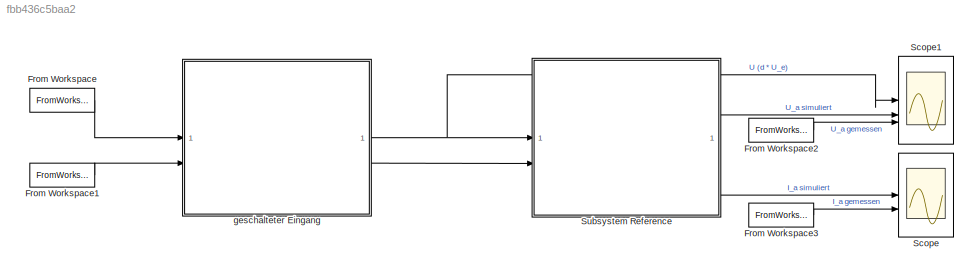
MODEL slx_fbb436c5baa2
KIND model
CONFIG AbsTol = auto
CONFIG EnableMultiTasking = off
CONFIG FixedStep = 1e-6
CONFIG MaxStep = auto
CONFIG MinStep = auto
CONFIG RelTol = 1e-3
CONFIG SampleTimeConstraint = Unconstrained
CONFIG SolverName = ode3
CONFIG StartTime = 0.0
CONFIG StopTime = Zeit(end)
BLOCK [FromWorkspace] From Workspace
  VariableName = [Zeit D]
BLOCK [FromWorkspace] From Workspace1
  VariableName = [Zeit U_e]
BLOCK [FromWorkspace] From Workspace2
  VariableName = [Zeit U_a]
BLOCK [FromWorkspace] From Workspace3
  VariableName = [Zeit I_a]
BLOCK [Scope] Scope
  Floating = off
  NumInputPorts = 2
  ScopeSpecificationString = Simulink.scopes.TimeScopeBlockCfg('CurrentConfiguration', extmgr.ConfigurationSet(extmgr.Configuration('Core','General UI',true),extmgr.Configuration('Core','Source UI',true),extmgr.Configuration('Sources','WiredSimulink',true),extmgr.Configuration('Visuals','Time Domain',true,'SerializedDisplays',{struct('MinYLimReal','-0.07456','MaxYLimReal','0.16704','YLabelReal','','MinYLimMag','0.00000','MaxY...<+1554ch>
BLOCK [Scope] Scope1
  Floating = off
  NumInputPorts = 3
  ScopeSpecificationString = Simulink.scopes.TimeScopeBlockCfg('CurrentConfiguration', extmgr.ConfigurationSet(extmgr.Configuration('Core','General UI',true),extmgr.Configuration('Core','Source UI',true),extmgr.Configuration('Sources','WiredSimulink',true,'DataLoggingVariableName','ScopeData1'),extmgr.Configuration('Visuals','Time Domain',true,'SerializedDisplays',{struct('MinYLimReal','-0.93187','MaxYLimReal','1.81972','YLab...<+1629ch>
BLOCK [SubSystem] Subsystem Reference
  ReferencedSubsystem = V5_SUB_DC_DC_Wandler
BLOCK [SubSystem] geschalteter Eingang
  ReferencedSubsystem = V5_SUB_Geschalteter_Eingang
LINE From Workspace1:1 -> geschalteter Eingang:2
LINE From Workspace2:1 -> Scope1:3
LINE From Workspace3:1 -> Scope:2
LINE From Workspace:1 -> geschalteter Eingang:1
LINE Subsystem Reference:1 -> Scope1:2
LINE Subsystem Reference:2 -> Scope:1
NET geschalteter Eingang:1 -> Scope1:1, Subsystem Reference:1
LINE geschalteter Eingang:2 -> Subsystem Reference:2
note: NET lines group one-source signal fan-out (src -> all destinations, sorted); 1:1 wires keep LINE
